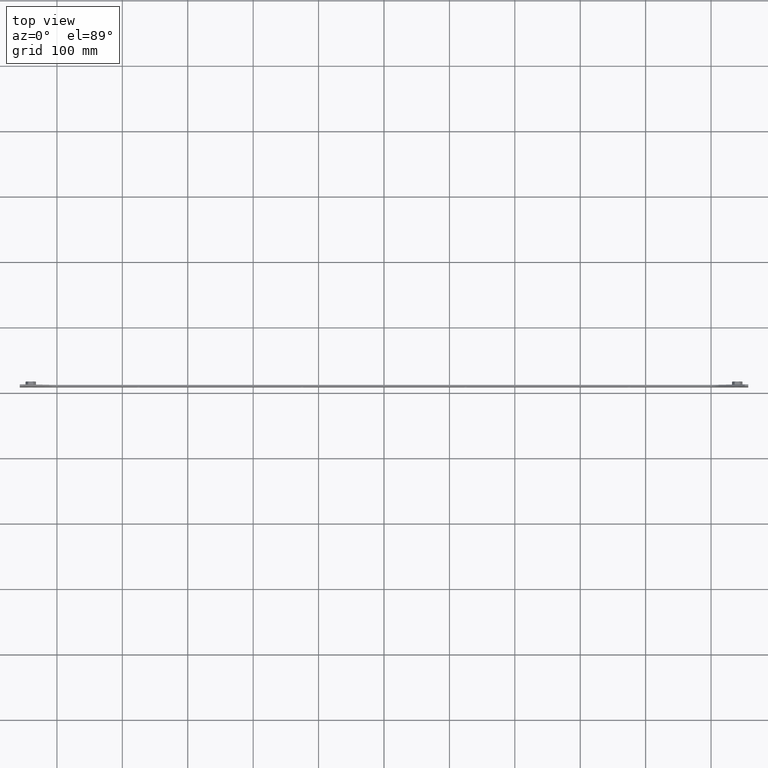
[diagram: clean part render]
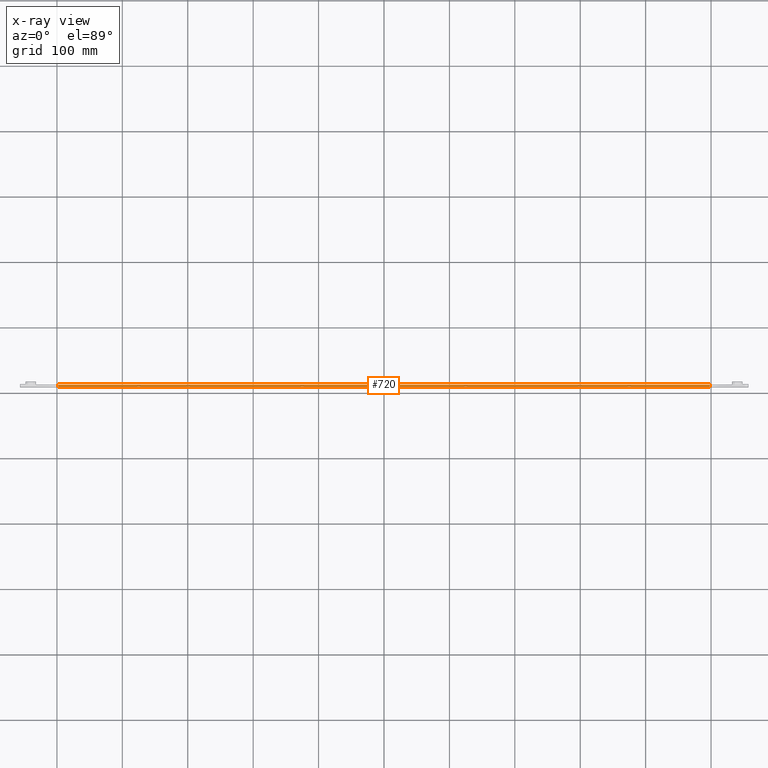
[diagram: x-ray — body ghosted, one internal face saturated and labeled with its STEP entity id]
A machine part, top view, then the same camera in x-ray: the body is ghosted and one INTERNAL B-rep face — a face not visible from any outside direction — is saturated and labeled: STEP entity #720.
In plain terms, the highlighted planar face has unit normal (0, 0, -1).
Its self-contained STEP definition (entity closure, byte-faithful):
#20 = DIRECTION ( 'NONE',  ( 0.000000000000000000, 1.000000000000000000, 0.000000000000000000 ) ) ;
#267 = CARTESIAN_POINT ( 'NONE',  ( 497.5195647845589519, -1088.305264068951146, -1180.000000000000000 ) ) ;
#558 = CARTESIAN_POINT ( 'NONE',  ( 497.5195647845589519, -1088.305264068951146, -1180.000000000000000 ) ) ;
#720 = ADVANCED_FACE ( 'NONE', ( #1789 ), #2845, .F. ) ;
#729 = DIRECTION ( 'NONE',  ( 0.000000000000000000, 1.000000000000000000, 0.000000000000000000 ) ) ;
#952 = CARTESIAN_POINT ( 'NONE',  ( 553.0464767191406281, -1091.305264068951146, -1180.000000000000000 ) ) ;
#965 = CARTESIAN_POINT ( 'NONE',  ( 497.5195647845589519, -1091.305264068951146, -1180.000000000000000 ) ) ;
#1008 = DIRECTION ( 'NONE',  ( -1.000000000000000000, 0.000000000000000000, 0.000000000000000000 ) ) ;
#1021 = CARTESIAN_POINT ( 'NONE',  ( -497.5195647845589519, -1088.305264068951146, -1180.000000000000000 ) ) ;
#1069 = VECTOR ( 'NONE', #729, 1000.000000000000000 ) ;
#1153 = EDGE_CURVE ( 'NONE', #3152, #1590, #1852, .T. ) ;
#1170 = ORIENTED_EDGE ( 'NONE', *, *, #2473, .F. ) ;
#1226 = ORIENTED_EDGE ( 'NONE', *, *, #1153, .T. ) ;
#1269 = CARTESIAN_POINT ( 'NONE',  ( 497.5195647845589519, -1088.305264068951146, -1180.000000000000000 ) ) ;
#1436 = VERTEX_POINT ( 'NONE', #2769 ) ;
#1440 = CARTESIAN_POINT ( 'NONE',  ( 497.5195647845589519, -1088.305264068951146, -1180.000000000000000 ) ) ;
#1541 = EDGE_CURVE ( 'NONE', #2958, #3152, #2853, .T. ) ;
#1590 = VERTEX_POINT ( 'NONE', #1021 ) ;
#1643 = DIRECTION ( 'NONE',  ( -1.000000000000000000, 0.000000000000000000, 0.000000000000000000 ) ) ;
#1789 = FACE_OUTER_BOUND ( 'NONE', #2322, .T. ) ;
#1830 = VECTOR ( 'NONE', #1643, 1000.000000000000000 ) ;
#1852 = LINE ( 'NONE', #558, #1830 ) ;
#2011 = EDGE_CURVE ( 'NONE', #1436, #1590, #3003, .T. ) ;
#2322 = EDGE_LOOP ( 'NONE', ( #2666, #1170, #2504, #1226 ) ) ;
#2333 = DIRECTION ( 'NONE',  ( 0.000000000000000000, 0.000000000000000000, -1.000000000000000000 ) ) ;
#2473 = EDGE_CURVE ( 'NONE', #2958, #1436, #3251, .T. ) ;
#2504 = ORIENTED_EDGE ( 'NONE', *, *, #1541, .T. ) ;
#2550 = AXIS2_PLACEMENT_3D ( 'NONE', #1269, #2333, #1008 ) ;
#2621 = VECTOR ( 'NONE', #3031, 1000.000000000000000 ) ;
#2666 = ORIENTED_EDGE ( 'NONE', *, *, #2011, .F. ) ;
#2721 = VECTOR ( 'NONE', #20, 1000.000000000000000 ) ;
#2769 = CARTESIAN_POINT ( 'NONE',  ( -497.5195647845588383, -1091.305264068951146, -1180.000000000000000 ) ) ;
#2845 = PLANE ( 'NONE',  #2550 ) ;
#2853 = LINE ( 'NONE', #267, #1069 ) ;
#2958 = VERTEX_POINT ( 'NONE', #965 ) ;
#2984 = CARTESIAN_POINT ( 'NONE',  ( -497.5195647845589519, -1088.305264068951146, -1180.000000000000000 ) ) ;
#3003 = LINE ( 'NONE', #2984, #2721 ) ;
#3031 = DIRECTION ( 'NONE',  ( -1.000000000000000000, -0.000000000000000000, -0.000000000000000000 ) ) ;
#3152 = VERTEX_POINT ( 'NONE', #1440 ) ;
#3251 = LINE ( 'NONE', #952, #2621 ) ;